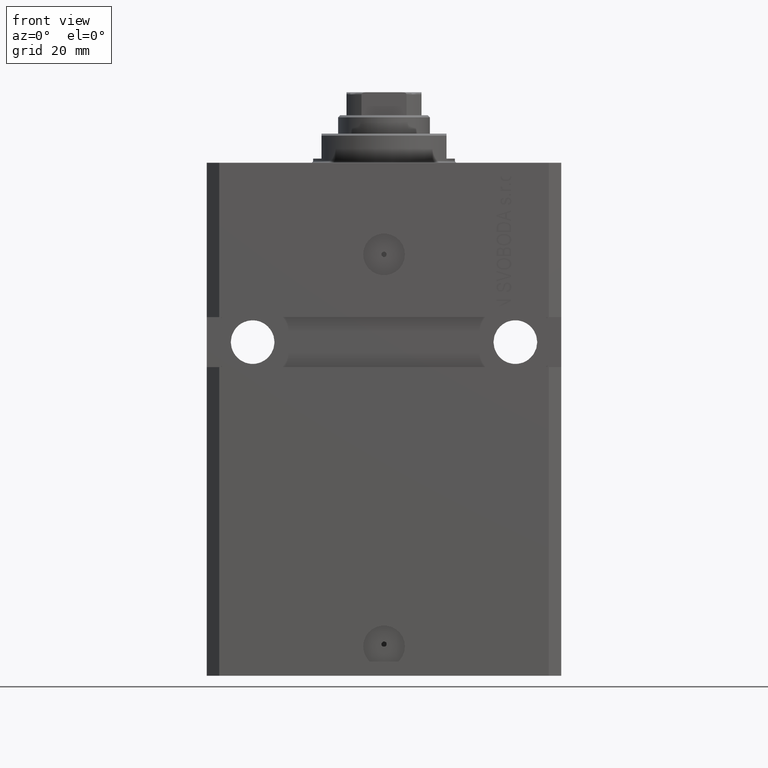
[diagram: clean part render]
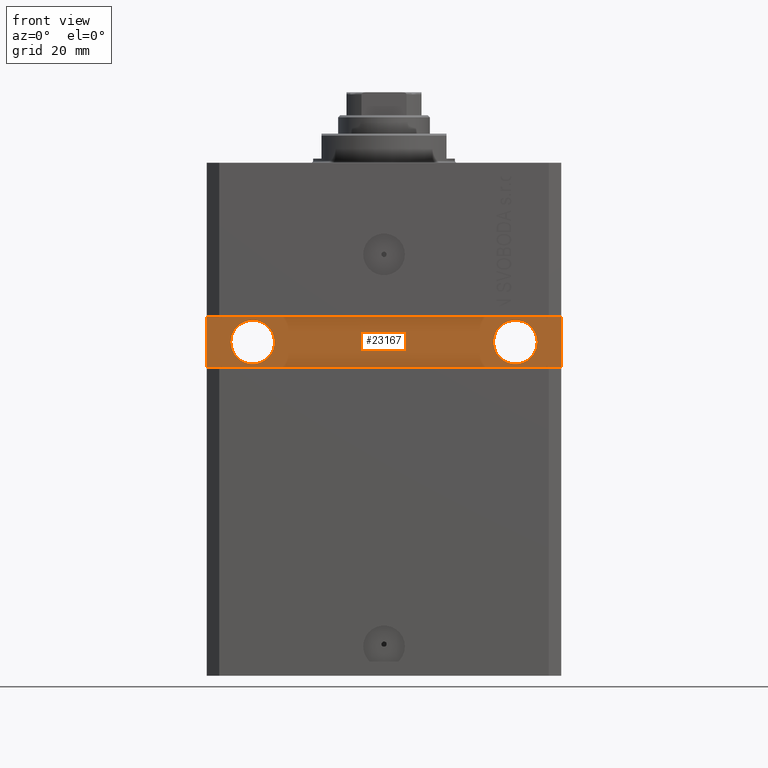
[diagram: same view with one face highlighted and labeled with its STEP entity id]
A machine part, front view. The second image highlights one B-rep face of the part: STEP entity #23167.
In plain terms, the highlighted planar face has unit normal (0, -1, 0).
Its self-contained STEP definition (entity closure, byte-faithful):
#958 = EDGE_CURVE ( 'NONE', #26614, #3481, #38099, .T. ) ;
#985 = CARTESIAN_POINT ( 'NONE',  ( -42.50000000000000000, -28.50000000000000711, -37.00000000000000711 ) ) ;
#1422 = DIRECTION ( 'NONE',  ( 1.000000000000000000, 0.000000000000000000, 0.000000000000000000 ) ) ;
#1951 = AXIS2_PLACEMENT_3D ( 'NONE', #43615, #36140, #39763 ) ;
#2132 = FACE_BOUND ( 'NONE', #13049, .T. ) ;
#3010 = DIRECTION ( 'NONE',  ( 1.000000000000000000, 0.000000000000000000, 0.000000000000000000 ) ) ;
#3481 = VERTEX_POINT ( 'NONE', #44724 ) ;
#3843 = AXIS2_PLACEMENT_3D ( 'NONE', #31276, #14265, #27865 ) ;
#5327 = CARTESIAN_POINT ( 'NONE',  ( 42.50000000000001421, -28.49999999999999289, -37.00000000000000000 ) ) ;
#5355 = VERTEX_POINT ( 'NONE', #5327 ) ;
#5545 = VERTEX_POINT ( 'NONE', #985 ) ;
#5696 = LINE ( 'NONE', #8434, #24084 ) ;
#6853 = CARTESIAN_POINT ( 'NONE',  ( 26.25000000000001776, -28.49999999999999645, -43.00000000000000000 ) ) ;
#6858 = DIRECTION ( 'NONE',  ( 1.037025423586453699E-16, -1.000000000000000000, 1.848892746611746419E-32 ) ) ;
#7910 = VECTOR ( 'NONE', #20902, 1000.000000000000000 ) ;
#8106 = CIRCLE ( 'NONE', #24014, 5.249999999999997335 ) ;
#8415 = CARTESIAN_POINT ( 'NONE',  ( -31.49999999999998579, -28.50000000000000355, -43.00000000000000000 ) ) ;
#8434 = CARTESIAN_POINT ( 'NONE',  ( 42.50000000000001421, -28.49999999999999289, -48.99999999999997868 ) ) ;
#8486 = ORIENTED_EDGE ( 'NONE', *, *, #958, .T. ) ;
#8716 = PLANE ( 'NONE',  #1951 ) ;
#8855 = DIRECTION ( 'NONE',  ( 1.101411730780568590E-16, -1.000000000000000000, 0.000000000000000000 ) ) ;
#8874 = DIRECTION ( 'NONE',  ( 0.000000000000000000, 0.000000000000000000, 1.000000000000000000 ) ) ;
#9430 = EDGE_CURVE ( 'NONE', #40439, #20815, #19009, .T. ) ;
#10647 = CARTESIAN_POINT ( 'NONE',  ( -36.74999999999998579, -28.50000000000000355, -43.00000000000000000 ) ) ;
#10741 = EDGE_LOOP ( 'NONE', ( #11370, #43903 ) ) ;
#11370 = ORIENTED_EDGE ( 'NONE', *, *, #30817, .F. ) ;
#11392 = ORIENTED_EDGE ( 'NONE', *, *, #9430, .F. ) ;
#11488 = ORIENTED_EDGE ( 'NONE', *, *, #39956, .T. ) ;
#11615 = ORIENTED_EDGE ( 'NONE', *, *, #30014, .T. ) ;
#12162 = CIRCLE ( 'NONE', #40497, 5.249999999999997335 ) ;
#12782 = FACE_BOUND ( 'NONE', #10741, .T. ) ;
#13049 = EDGE_LOOP ( 'NONE', ( #11392, #16235 ) ) ;
#13092 = EDGE_CURVE ( 'NONE', #5545, #26614, #36873, .T. ) ;
#14265 = DIRECTION ( 'NONE',  ( 1.101411730780568590E-16, -1.000000000000000000, 0.000000000000000000 ) ) ;
#15569 = DIRECTION ( 'NONE',  ( 0.000000000000000000, 0.000000000000000000, -1.000000000000000000 ) ) ;
#16190 = CIRCLE ( 'NONE', #27774, 5.249999999999997335 ) ;
#16235 = ORIENTED_EDGE ( 'NONE', *, *, #38131, .F. ) ;
#18396 = VECTOR ( 'NONE', #15569, 1000.000000000000000 ) ;
#19009 = CIRCLE ( 'NONE', #3843, 5.249999999999997335 ) ;
#19051 = DIRECTION ( 'NONE',  ( 1.000000000000000000, 0.000000000000000000, 0.000000000000000000 ) ) ;
#20815 = VERTEX_POINT ( 'NONE', #10647 ) ;
#20902 = DIRECTION ( 'NONE',  ( -1.000000000000000000, -1.632680918566406300E-16, -8.163404592832031500E-17 ) ) ;
#22367 = CARTESIAN_POINT ( 'NONE',  ( -42.50000000000000000, -28.50000000000000711, -37.00000000000000711 ) ) ;
#23167 = ADVANCED_FACE ( 'NONE', ( #12782, #2132, #30024 ), #8716, .T. ) ;
#23592 = EDGE_LOOP ( 'NONE', ( #8486, #11488, #11615, #41124 ) ) ;
#24014 = AXIS2_PLACEMENT_3D ( 'NONE', #8415, #8855, #19051 ) ;
#24084 = VECTOR ( 'NONE', #8874, 1000.000000000000000 ) ;
#24529 = CARTESIAN_POINT ( 'NONE',  ( 42.50000000000001421, -28.49999999999999289, -37.00000000000000000 ) ) ;
#25229 = DIRECTION ( 'NONE',  ( 1.037025423586453699E-16, -1.000000000000000000, 1.848892746611746419E-32 ) ) ;
#26614 = VERTEX_POINT ( 'NONE', #28722 ) ;
#27657 = DIRECTION ( 'NONE',  ( 1.000000000000000000, 1.632680918566406300E-16, 1.632680918566406300E-16 ) ) ;
#27774 = AXIS2_PLACEMENT_3D ( 'NONE', #28634, #25229, #1422 ) ;
#27865 = DIRECTION ( 'NONE',  ( 1.000000000000000000, 0.000000000000000000, 0.000000000000000000 ) ) ;
#28113 = CARTESIAN_POINT ( 'NONE',  ( -42.50000000000000000, -28.50000000000000711, -48.99999999999999289 ) ) ;
#28634 = CARTESIAN_POINT ( 'NONE',  ( 31.50000000000001421, -28.49999999999999645, -43.00000000000000000 ) ) ;
#28722 = CARTESIAN_POINT ( 'NONE',  ( -42.50000000000000000, -28.50000000000000711, -48.99999999999999289 ) ) ;
#28867 = VERTEX_POINT ( 'NONE', #29366 ) ;
#29366 = CARTESIAN_POINT ( 'NONE',  ( 36.75000000000001421, -28.49999999999999645, -43.00000000000000000 ) ) ;
#30014 = EDGE_CURVE ( 'NONE', #5355, #5545, #31781, .T. ) ;
#30024 = FACE_OUTER_BOUND ( 'NONE', #23592, .T. ) ;
#30817 = EDGE_CURVE ( 'NONE', #28867, #32085, #12162, .T. ) ;
#31276 = CARTESIAN_POINT ( 'NONE',  ( -31.49999999999998579, -28.50000000000000355, -43.00000000000000000 ) ) ;
#31781 = LINE ( 'NONE', #24529, #7910 ) ;
#32085 = VERTEX_POINT ( 'NONE', #6853 ) ;
#33858 = CARTESIAN_POINT ( 'NONE',  ( 31.50000000000001421, -28.49999999999999645, -43.00000000000000000 ) ) ;
#36140 = DIRECTION ( 'NONE',  ( 1.632680918566406300E-16, -1.000000000000000000, 0.000000000000000000 ) ) ;
#36873 = LINE ( 'NONE', #22367, #18396 ) ;
#38099 = LINE ( 'NONE', #28113, #38869 ) ;
#38131 = EDGE_CURVE ( 'NONE', #20815, #40439, #8106, .T. ) ;
#38397 = CARTESIAN_POINT ( 'NONE',  ( -26.24999999999998934, -28.50000000000000355, -43.00000000000000000 ) ) ;
#38869 = VECTOR ( 'NONE', #27657, 1000.000000000000000 ) ;
#39763 = DIRECTION ( 'NONE',  ( 1.000000000000000000, 1.632680918566406300E-16, 0.000000000000000000 ) ) ;
#39956 = EDGE_CURVE ( 'NONE', #3481, #5355, #5696, .T. ) ;
#40439 = VERTEX_POINT ( 'NONE', #38397 ) ;
#40497 = AXIS2_PLACEMENT_3D ( 'NONE', #33858, #6858, #3010 ) ;
#41124 = ORIENTED_EDGE ( 'NONE', *, *, #13092, .T. ) ;
#42376 = EDGE_CURVE ( 'NONE', #32085, #28867, #16190, .T. ) ;
#43615 = CARTESIAN_POINT ( 'NONE',  ( 4.790119779726142858E-15, -28.50000000000000000, 0.000000000000000000 ) ) ;
#43903 = ORIENTED_EDGE ( 'NONE', *, *, #42376, .F. ) ;
#44724 = CARTESIAN_POINT ( 'NONE',  ( 42.50000000000001421, -28.49999999999999289, -48.99999999999997868 ) ) ;